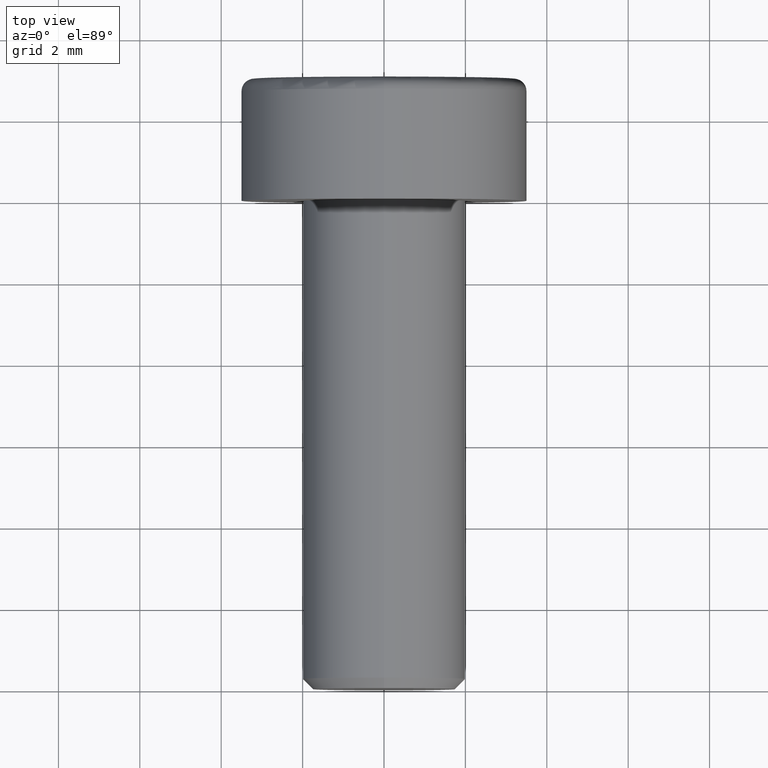
[diagram: clean part render]
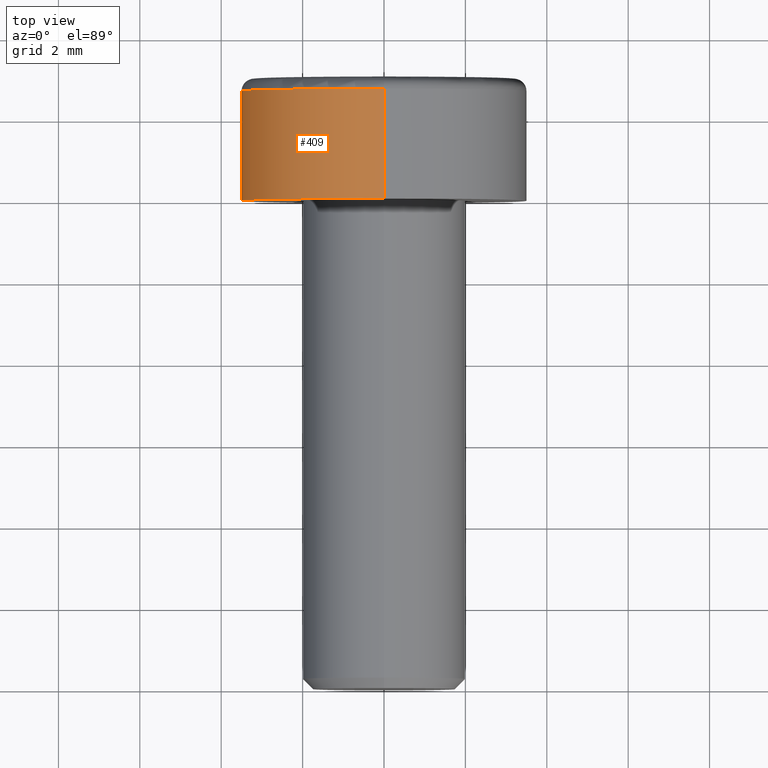
[diagram: same view with one face highlighted and labeled with its STEP entity id]
A machine part, top view. The second image highlights one B-rep face of the part: STEP entity #409.
In plain terms, the highlighted cylindrical surface (partial cylindrical patch) has radius 3.5 mm, axis along (-0, -1, -0).
Its self-contained STEP definition (entity closure, byte-faithful):
#11 = DIRECTION ( 'NONE',  ( -0.0000000000000000000, -1.000000000000000000, -0.0000000000000000000 ) ) ;
#28 = CARTESIAN_POINT ( 'NONE',  ( 0.0000000000000000000, 3.000000000000000000, -3.500000000000000000 ) ) ;
#49 = DIRECTION ( 'NONE',  ( 0.0000000000000000000, 0.0000000000000000000, 1.000000000000000000 ) ) ;
#60 = DIRECTION ( 'NONE',  ( -0.0000000000000000000, -1.000000000000000000, -0.0000000000000000000 ) ) ;
#63 = CARTESIAN_POINT ( 'NONE',  ( 0.0000000000000000000, 2.700000000000000200, 0.0000000000000000000 ) ) ;
#70 = CARTESIAN_POINT ( 'NONE',  ( 0.0000000000000000000, 0.0000000000000000000, -3.500000000000000000 ) ) ;
#99 = CARTESIAN_POINT ( 'NONE',  ( 0.0000000000000000000, 2.700000000000000200, -3.500000000000000000 ) ) ;
#113 = CARTESIAN_POINT ( 'NONE',  ( 0.0000000000000000000, 3.000000000000000000, 0.0000000000000000000 ) ) ;
#131 = DIRECTION ( 'NONE',  ( 0.0000000000000000000, 0.0000000000000000000, 1.000000000000000000 ) ) ;
#133 = DIRECTION ( 'NONE',  ( 0.0000000000000000000, 1.000000000000000000, 0.0000000000000000000 ) ) ;
#134 = CARTESIAN_POINT ( 'NONE',  ( 0.0000000000000000000, 0.0000000000000000000, 0.0000000000000000000 ) ) ;
#142 = CARTESIAN_POINT ( 'NONE',  ( 4.286263797015736600E-016, 0.0000000000000000000, 3.500000000000000000 ) ) ;
#161 = DIRECTION ( 'NONE',  ( -0.0000000000000000000, -1.000000000000000000, -0.0000000000000000000 ) ) ;
#170 = CARTESIAN_POINT ( 'NONE',  ( 4.286263797015736600E-016, 2.700000000000000200, 3.500000000000000000 ) ) ;
#171 = DIRECTION ( 'NONE',  ( 0.0000000000000000000, 0.0000000000000000000, -1.000000000000000000 ) ) ;
#204 = CARTESIAN_POINT ( 'NONE',  ( 4.286263797015736600E-016, 3.000000000000000000, 3.500000000000000000 ) ) ;
#205 = DIRECTION ( 'NONE',  ( -0.0000000000000000000, -1.000000000000000000, -0.0000000000000000000 ) ) ;
#236 = VERTEX_POINT ( 'NONE', #70 ) ;
#241 = VERTEX_POINT ( 'NONE', #99 ) ;
#243 = CYLINDRICAL_SURFACE ( 'NONE', #466, 3.500000000000000000 ) ;
#253 = FACE_OUTER_BOUND ( 'NONE', #525, .T. ) ;
#286 = CIRCLE ( 'NONE', #470, 3.500000000000000000 ) ;
#290 = LINE ( 'NONE', #204, #295 ) ;
#295 = VECTOR ( 'NONE', #205, 1000.000000000000000 ) ;
#301 = LINE ( 'NONE', #28, #303 ) ;
#303 = VECTOR ( 'NONE', #11, 1000.000000000000000 ) ;
#307 = CIRCLE ( 'NONE', #478, 3.500000000000000000 ) ;
#337 = VERTEX_POINT ( 'NONE', #170 ) ;
#357 = VERTEX_POINT ( 'NONE', #142 ) ;
#369 = ORIENTED_EDGE ( 'NONE', *, *, #428, .T. ) ;
#409 = ADVANCED_FACE ( 'NONE', ( #253 ), #243, .T. ) ;
#424 = EDGE_CURVE ( 'NONE', #337, #241, #286, .T. ) ;
#428 = EDGE_CURVE ( 'NONE', #241, #236, #301, .T. ) ;
#432 = EDGE_CURVE ( 'NONE', #337, #357, #290, .T. ) ;
#437 = EDGE_CURVE ( 'NONE', #236, #357, #307, .T. ) ;
#466 = AXIS2_PLACEMENT_3D ( 'NONE', #113, #161, #171 ) ;
#470 = AXIS2_PLACEMENT_3D ( 'NONE', #63, #60, #49 ) ;
#478 = AXIS2_PLACEMENT_3D ( 'NONE', #134, #133, #131 ) ;
#525 = EDGE_LOOP ( 'NONE', ( #562, #564, #369, #526 ) ) ;
#526 = ORIENTED_EDGE ( 'NONE', *, *, #437, .T. ) ;
#562 = ORIENTED_EDGE ( 'NONE', *, *, #432, .F. ) ;
#564 = ORIENTED_EDGE ( 'NONE', *, *, #424, .T. ) ;